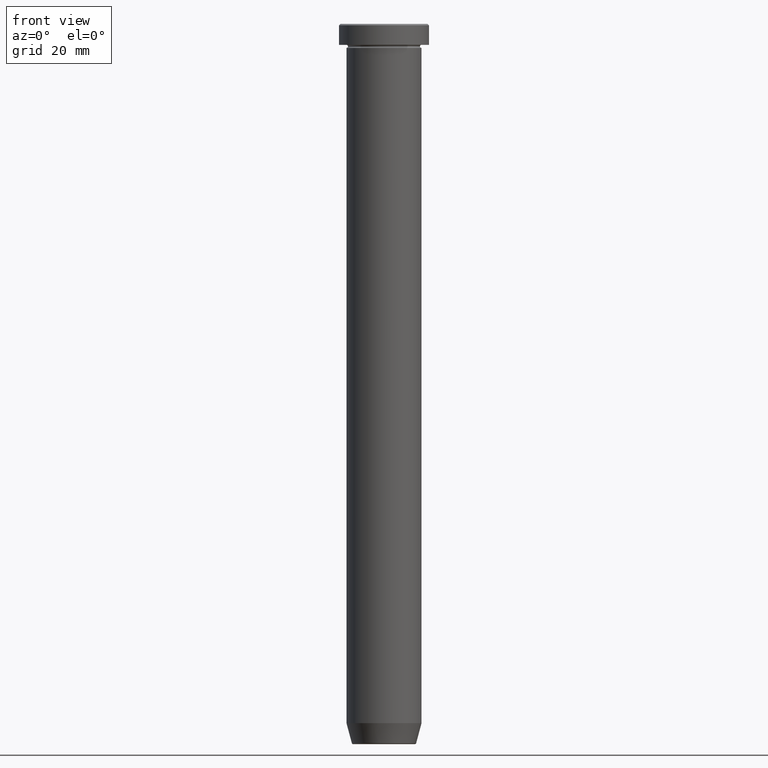
[diagram: clean part render]
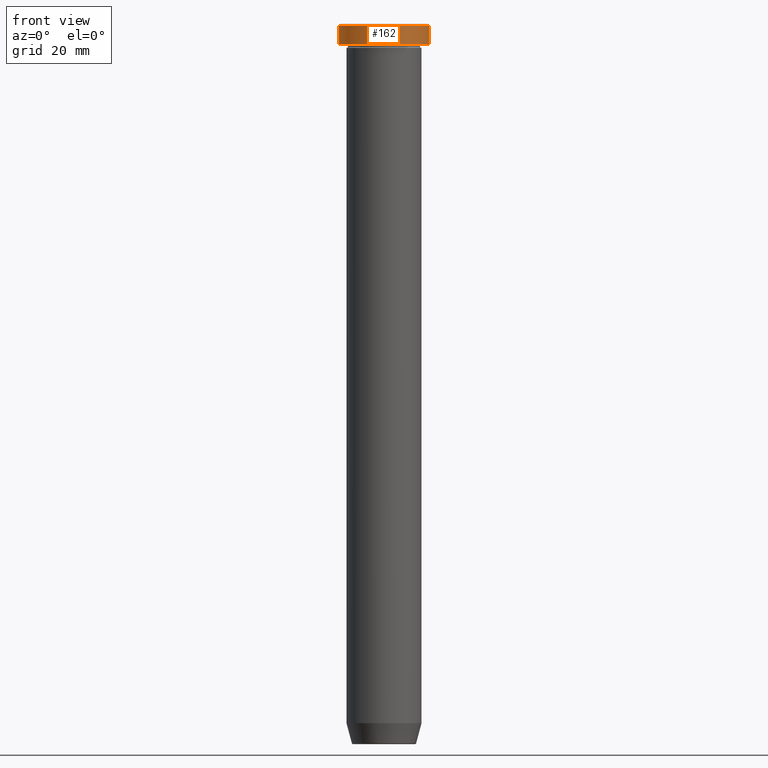
[diagram: same view with one face highlighted and labeled with its STEP entity id]
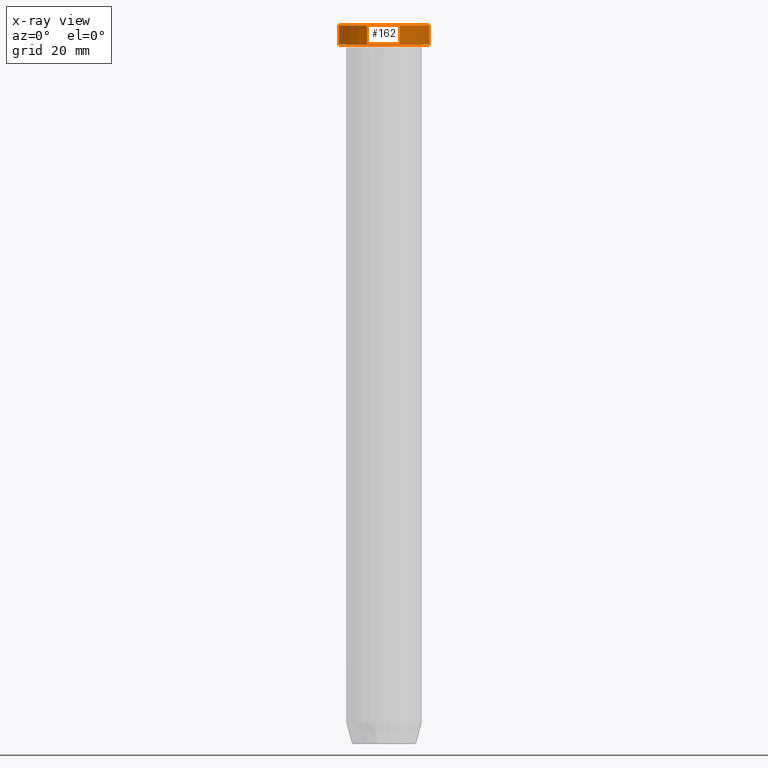
[diagram: x-ray of the same camera — body ghosted, the highlighted face saturated]
A machine part, front view. The second image highlights one B-rep face of the part: STEP entity #162.
The next image is the same camera in x-ray: the body ghosted, the highlighted face saturated — about 0% of this face is hidden behind the body in this view.
In plain terms, the highlighted cylindrical surface (partial cylindrical patch) has radius 15 mm, axis along (-0, -0, 1).
Its self-contained STEP definition (entity closure, byte-faithful):
#4 = ORIENTED_EDGE ( 'NONE', *, *, #514, .F. ) ;
#13 = CARTESIAN_POINT ( 'NONE',  ( -15.00000000000000000, 1.836970198721029589E-15, -0.4999999999999831246 ) ) ;
#19 = EDGE_CURVE ( 'NONE', #313, #94, #385, .T. ) ;
#28 = VERTEX_POINT ( 'NONE', #357 ) ;
#29 = EDGE_CURVE ( 'NONE', #28, #387, #521, .T. ) ;
#31 = DIRECTION ( 'NONE',  ( 1.000000000000000000, 0.000000000000000000, 0.000000000000000000 ) ) ;
#94 = VERTEX_POINT ( 'NONE', #13 ) ;
#95 = DIRECTION ( 'NONE',  ( -0.000000000000000000, -0.000000000000000000, 1.000000000000000000 ) ) ;
#99 = VECTOR ( 'NONE', #255, 1000.000000000000000 ) ;
#128 = DIRECTION ( 'NONE',  ( -0.000000000000000000, -0.000000000000000000, 1.000000000000000000 ) ) ;
#130 = CYLINDRICAL_SURFACE ( 'NONE', #140, 15.00000000000000000 ) ;
#136 = DIRECTION ( 'NONE',  ( 0.000000000000000000, 0.000000000000000000, -1.000000000000000000 ) ) ;
#140 = AXIS2_PLACEMENT_3D ( 'NONE', #223, #128, #31 ) ;
#160 = DIRECTION ( 'NONE',  ( -0.000000000000000000, -0.000000000000000000, 1.000000000000000000 ) ) ;
#162 = ADVANCED_FACE ( 'NONE', ( #539 ), #130, .T. ) ;
#163 = VECTOR ( 'NONE', #95, 1000.000000000000000 ) ;
#179 = CARTESIAN_POINT ( 'NONE',  ( 0.000000000000000000, 0.000000000000000000, -0.4999999999999831246 ) ) ;
#187 = ORIENTED_EDGE ( 'NONE', *, *, #29, .T. ) ;
#195 = ORIENTED_EDGE ( 'NONE', *, *, #19, .T. ) ;
#223 = CARTESIAN_POINT ( 'NONE',  ( 0.000000000000000000, 0.000000000000000000, 0.000000000000000000 ) ) ;
#255 = DIRECTION ( 'NONE',  ( -0.000000000000000000, -0.000000000000000000, 1.000000000000000000 ) ) ;
#277 = CARTESIAN_POINT ( 'NONE',  ( 15.00000000000000000, 0.000000000000000000, 0.000000000000000000 ) ) ;
#298 = EDGE_CURVE ( 'NONE', #387, #313, #558, .T. ) ;
#299 = LINE ( 'NONE', #480, #99 ) ;
#311 = DIRECTION ( 'NONE',  ( 1.000000000000000000, 0.000000000000000000, 0.000000000000000000 ) ) ;
#313 = VERTEX_POINT ( 'NONE', #454 ) ;
#357 = CARTESIAN_POINT ( 'NONE',  ( -15.00000000000000000, 1.836970198721029589E-15, -6.999999999999999112 ) ) ;
#385 = CIRCLE ( 'NONE', #524, 15.00000000000000000 ) ;
#387 = VERTEX_POINT ( 'NONE', #494 ) ;
#414 = AXIS2_PLACEMENT_3D ( 'NONE', #430, #160, #422 ) ;
#422 = DIRECTION ( 'NONE',  ( 1.000000000000000000, 0.000000000000000000, 0.000000000000000000 ) ) ;
#430 = CARTESIAN_POINT ( 'NONE',  ( 0.000000000000000000, 0.000000000000000000, -6.999999999999999112 ) ) ;
#454 = CARTESIAN_POINT ( 'NONE',  ( 15.00000000000000000, 0.000000000000000000, -0.4999999999999831246 ) ) ;
#480 = CARTESIAN_POINT ( 'NONE',  ( -15.00000000000000000, 1.836970198721029589E-15, 0.000000000000000000 ) ) ;
#494 = CARTESIAN_POINT ( 'NONE',  ( 15.00000000000000000, 0.000000000000000000, -6.999999999999999112 ) ) ;
#499 = ORIENTED_EDGE ( 'NONE', *, *, #298, .T. ) ;
#514 = EDGE_CURVE ( 'NONE', #28, #94, #299, .T. ) ;
#521 = CIRCLE ( 'NONE', #414, 15.00000000000000000 ) ;
#524 = AXIS2_PLACEMENT_3D ( 'NONE', #179, #136, #311 ) ;
#539 = FACE_OUTER_BOUND ( 'NONE', #560, .T. ) ;
#558 = LINE ( 'NONE', #277, #163 ) ;
#560 = EDGE_LOOP ( 'NONE', ( #4, #187, #499, #195 ) ) ;